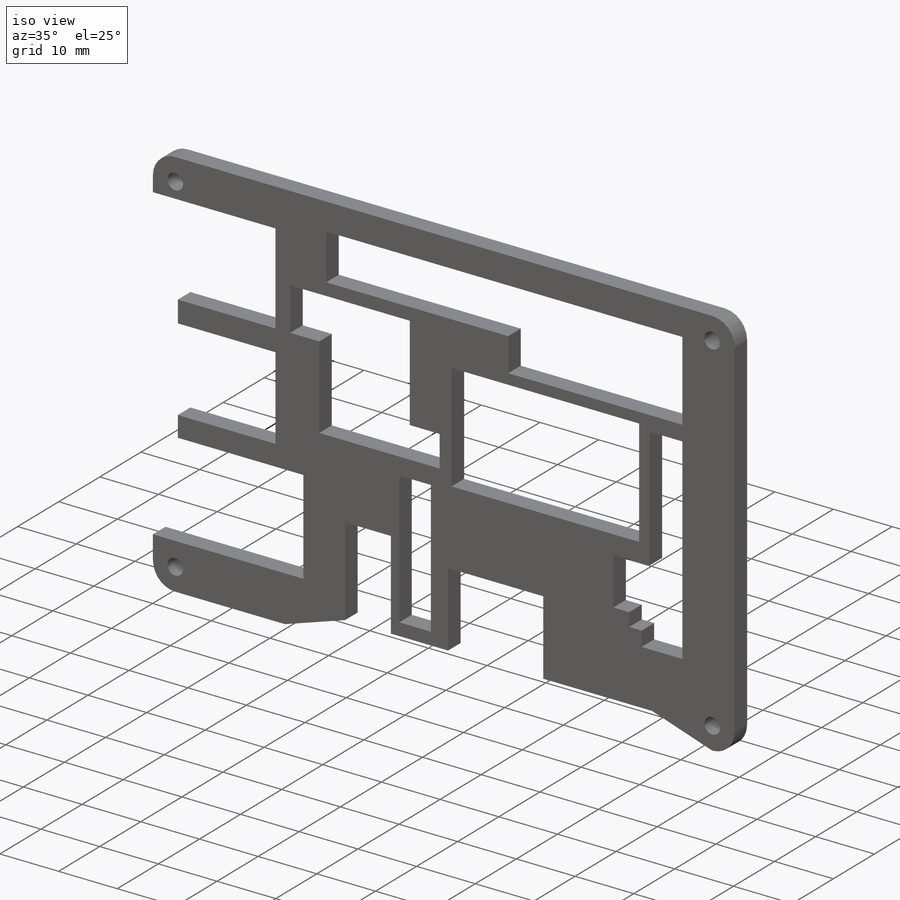
[diagram: iso view]
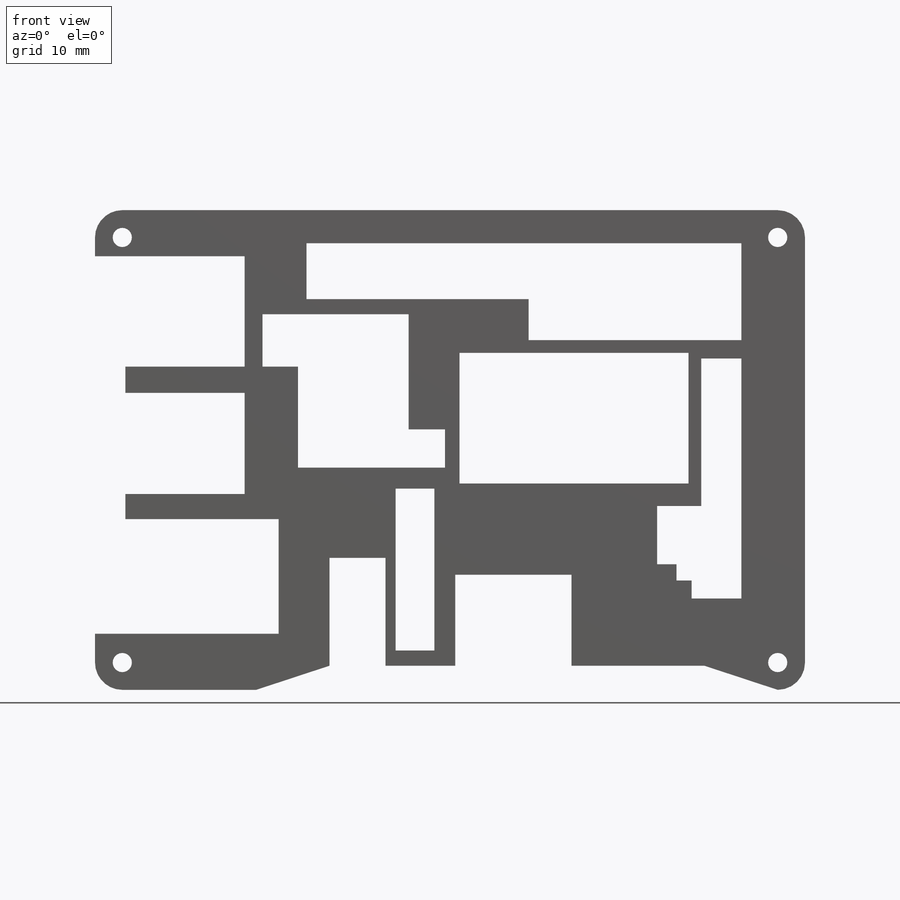
[diagram: front view]
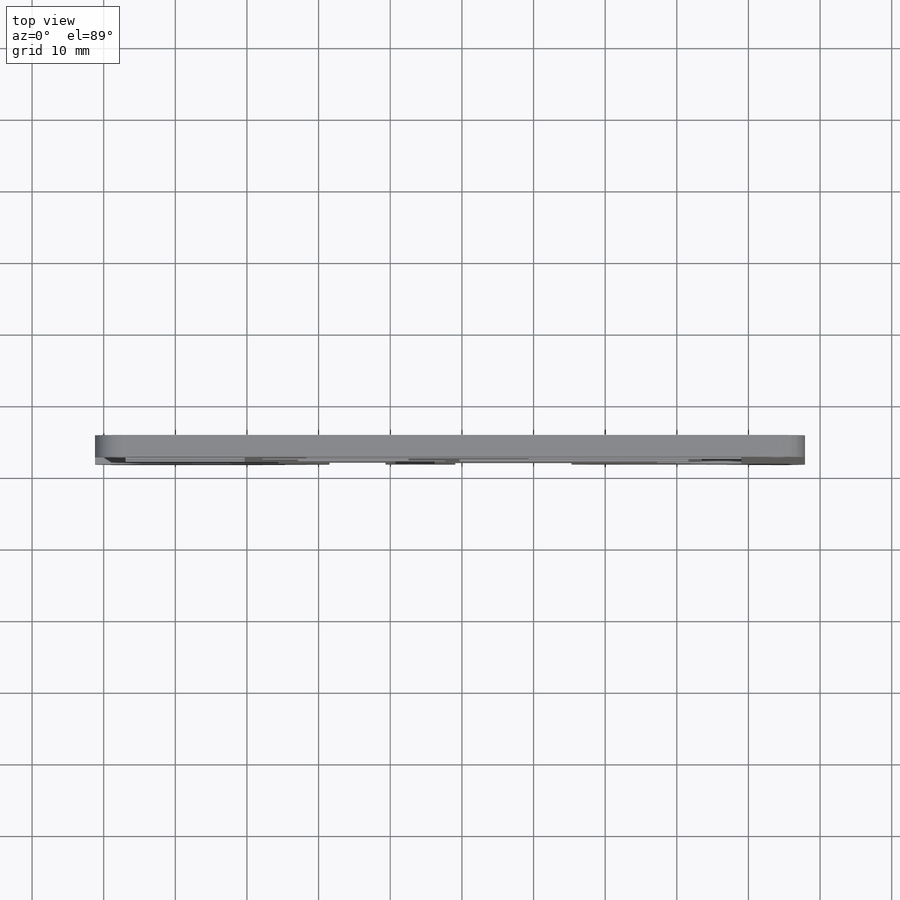
[diagram: top view]
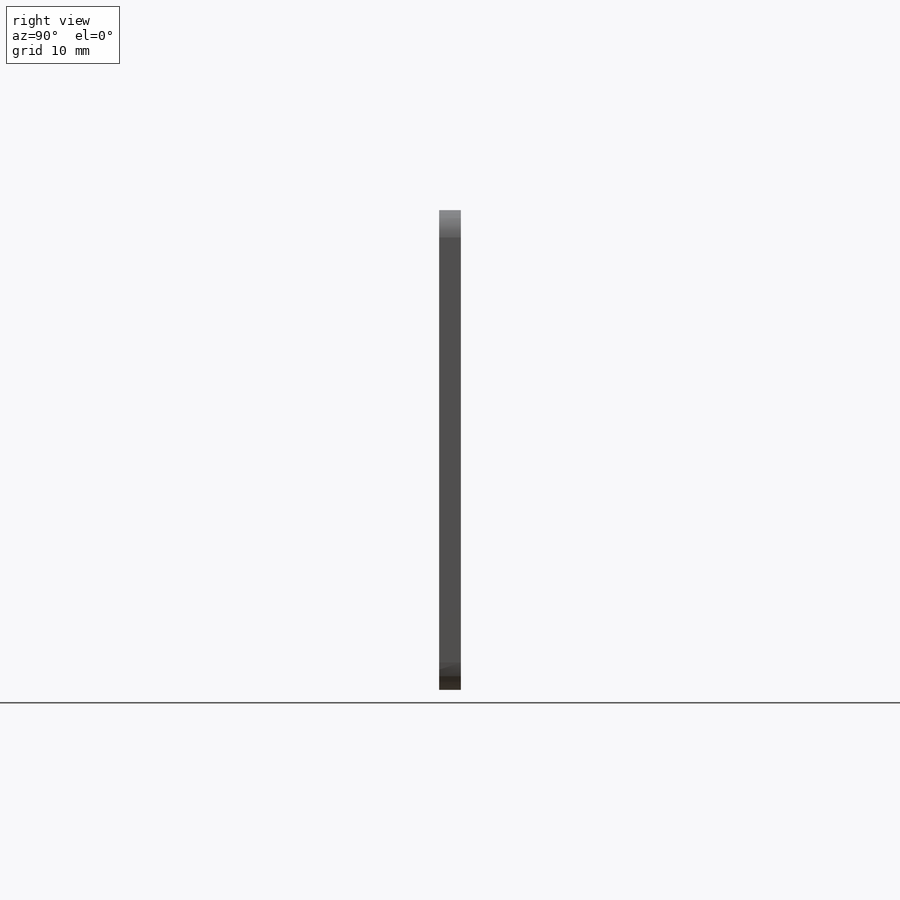
[diagram: right view]
SOLIDWORKS PART (.sldprt)
format: sldprt  version: not decoded by parser v0  size: 333,824 bytes
history: native  units: mm
features: sketch x6, cut_extrude x3, extrude x2, material x1 (+11 scaffold rows collapsed)
feature tree (23):
  scaffold x11  (default folders/planes/origin — collapsed)
  material  "Material <not specified>"
  sketch  "Sketch2"  dims[D1=12.7mm D2=1.4097mm D3=15.0495mm D4=16.8402mm D5=16.8402mm]
  extrude  "Boss-Extrude1"  Depth=3.048mm
  sketch  "Sketch3"  dims[D1=~2.676491mm]
  cut_extrude  "Cut-Extrude1"  [1 undecoded]
  sketch  "Sketch4"  dims[D1=3.048mm]
  cut_extrude  "Cut-Extrude2"  [1 undecoded]
  sketch  "Sketch5"  dims[D1=3.048mm D2=4.1917mm D3=7.175mm]
  cut_extrude  "Cut-Extrude3"  [1 undecoded]
  sketch  "Sketch6"  dims[D1=5.6896mm D2=1.397mm D3=12.7mm]
  sketch  "Sketch7"  dims[D1=1.397mm D2=12.7mm D3=5.6896mm]
  extrude  "Boss-Extrude3"  Depth=3.048mm
decode coverage: 8 of 11 modeling features carry decoded parameters
note: ~ marks probable driven/reference dimensions
note: 3 parameter values undecoded
summary: no parameter record found for 3 features
note: suppression state not decoded; provenance and decode notes live in map.json
